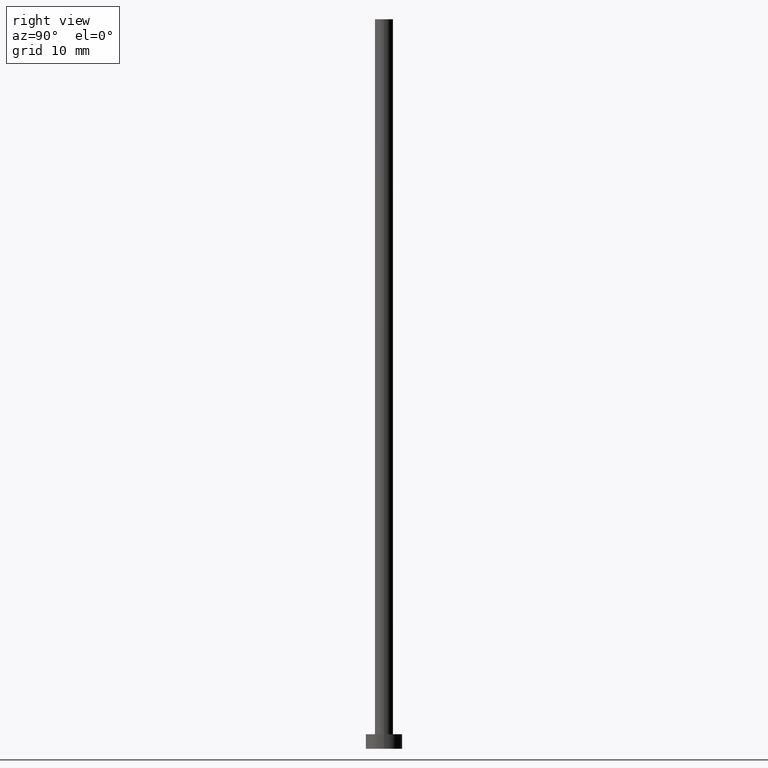
[diagram: clean part render]
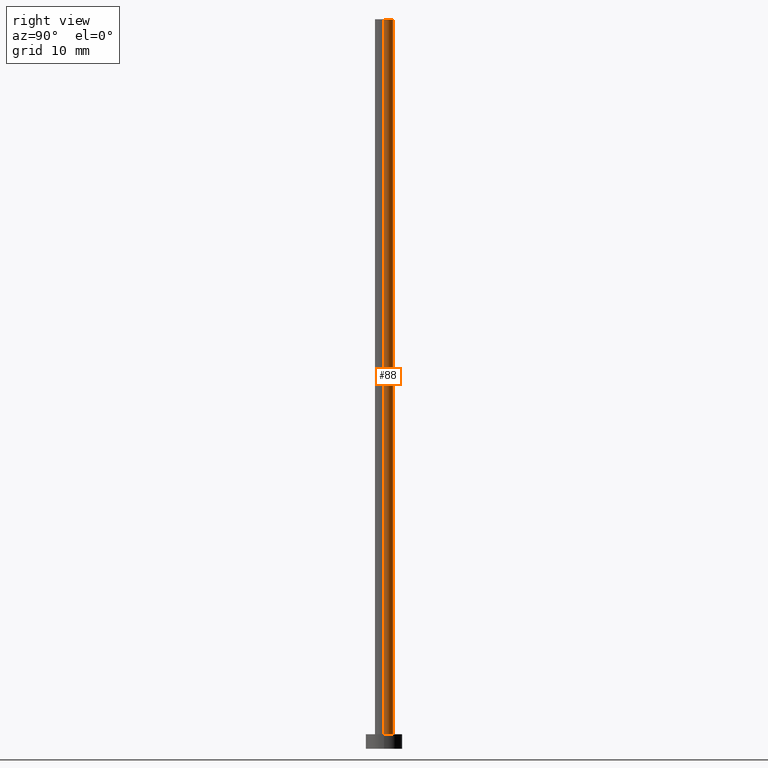
[diagram: same view with one face highlighted and labeled with its STEP entity id]
A machine part, right view. The second image highlights one B-rep face of the part: STEP entity #88.
In plain terms, the highlighted cylindrical surface (edge-blend (fillet) strip) has radius 1.25 mm, axis along (-0, -0, -1).
Its self-contained STEP definition (entity closure, byte-faithful):
#3 = CARTESIAN_POINT ( 'NONE',  ( 0.000000000000000000, 0.000000000000000000, 100.0000000000000000 ) ) ;
#13 = ORIENTED_EDGE ( 'NONE', *, *, #186, .F. ) ;
#18 = CIRCLE ( 'NONE', #85, 1.250000000000000000 ) ;
#22 = VERTEX_POINT ( 'NONE', #223 ) ;
#23 = EDGE_CURVE ( 'NONE', #22, #92, #215, .T. ) ;
#24 = LINE ( 'NONE', #90, #118 ) ;
#29 = LINE ( 'NONE', #220, #206 ) ;
#31 = ORIENTED_EDGE ( 'NONE', *, *, #23, .T. ) ;
#35 = FACE_OUTER_BOUND ( 'NONE', #75, .T. ) ;
#38 = AXIS2_PLACEMENT_3D ( 'NONE', #211, #234, #110 ) ;
#43 = ORIENTED_EDGE ( 'NONE', *, *, #230, .T. ) ;
#54 = CYLINDRICAL_SURFACE ( 'NONE', #38, 1.250000000000000000 ) ;
#68 = VERTEX_POINT ( 'NONE', #74 ) ;
#74 = CARTESIAN_POINT ( 'NONE',  ( 1.250000000000000000, 1.530808498934191571E-16, 100.0000000000000000 ) ) ;
#75 = EDGE_LOOP ( 'NONE', ( #96, #43, #31, #13 ) ) ;
#76 = DIRECTION ( 'NONE',  ( -0.000000000000000000, -0.000000000000000000, -1.000000000000000000 ) ) ;
#85 = AXIS2_PLACEMENT_3D ( 'NONE', #3, #130, #218 ) ;
#88 = ADVANCED_FACE ( 'NONE', ( #35 ), #54, .T. ) ;
#90 = CARTESIAN_POINT ( 'NONE',  ( 1.250000000000000000, 1.530808498934191571E-16, 100.0000000000000000 ) ) ;
#92 = VERTEX_POINT ( 'NONE', #189 ) ;
#96 = ORIENTED_EDGE ( 'NONE', *, *, #252, .F. ) ;
#110 = DIRECTION ( 'NONE',  ( -1.000000000000000000, 0.000000000000000000, 0.000000000000000000 ) ) ;
#118 = VECTOR ( 'NONE', #76, 1000.000000000000000 ) ;
#121 = DIRECTION ( 'NONE',  ( 0.000000000000000000, 0.000000000000000000, 1.000000000000000000 ) ) ;
#130 = DIRECTION ( 'NONE',  ( 0.000000000000000000, 0.000000000000000000, 1.000000000000000000 ) ) ;
#176 = AXIS2_PLACEMENT_3D ( 'NONE', #228, #121, #246 ) ;
#186 = EDGE_CURVE ( 'NONE', #221, #92, #29, .T. ) ;
#189 = CARTESIAN_POINT ( 'NONE',  ( -1.250000000000000000, 0.000000000000000000, 2.000000000000000000 ) ) ;
#193 = CARTESIAN_POINT ( 'NONE',  ( -1.250000000000000000, 0.000000000000000000, 100.0000000000000000 ) ) ;
#206 = VECTOR ( 'NONE', #244, 1000.000000000000000 ) ;
#211 = CARTESIAN_POINT ( 'NONE',  ( 0.000000000000000000, 0.000000000000000000, 100.0000000000000000 ) ) ;
#215 = CIRCLE ( 'NONE', #176, 1.250000000000000000 ) ;
#218 = DIRECTION ( 'NONE',  ( 1.000000000000000000, 0.000000000000000000, 0.000000000000000000 ) ) ;
#220 = CARTESIAN_POINT ( 'NONE',  ( -1.250000000000000000, 0.000000000000000000, 100.0000000000000000 ) ) ;
#221 = VERTEX_POINT ( 'NONE', #193 ) ;
#223 = CARTESIAN_POINT ( 'NONE',  ( 1.250000000000000000, 1.530808498934191571E-16, 2.000000000000000000 ) ) ;
#228 = CARTESIAN_POINT ( 'NONE',  ( 0.000000000000000000, 0.000000000000000000, 2.000000000000000000 ) ) ;
#230 = EDGE_CURVE ( 'NONE', #68, #22, #24, .T. ) ;
#234 = DIRECTION ( 'NONE',  ( -0.000000000000000000, -0.000000000000000000, -1.000000000000000000 ) ) ;
#244 = DIRECTION ( 'NONE',  ( -0.000000000000000000, -0.000000000000000000, -1.000000000000000000 ) ) ;
#246 = DIRECTION ( 'NONE',  ( 1.000000000000000000, 0.000000000000000000, 0.000000000000000000 ) ) ;
#252 = EDGE_CURVE ( 'NONE', #68, #221, #18, .T. ) ;